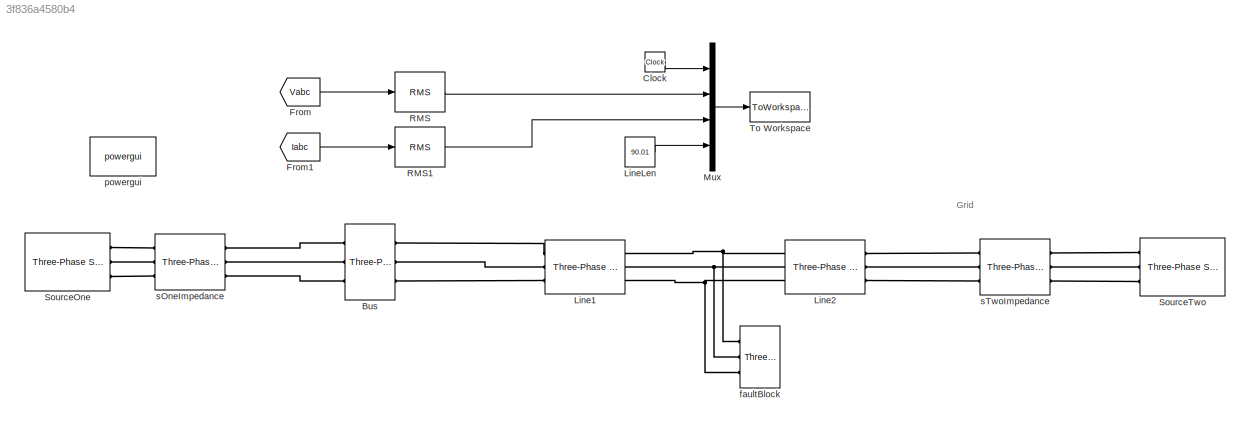
MODEL slx_3f836a4580b4
KIND model
CONFIG AbsTol = auto
CONFIG FixedStep = auto
CONFIG MaxStep = auto
CONFIG MinStep = auto
CONFIG RelTol = 1e-3
CONFIG SampleTimeConstraint = Unconstrained
CONFIG Solver = VariableStepAuto
CONFIG SolverMode = SingleTasking
CONFIG SolverName = VariableStepAuto
CONFIG StartTime = 0.0
CONFIG StopTime = 0.3
BLOCK [Reference] Bus  REF=powerlib/Measurements/Three-Phase
V-I Measurement
  Ports = [0, 0, 0, 0, 0, 3, 3]
  SourceBlock = powerlib/Measurements/Three-Phase\nV-I Measurement
  SourceType = Three-Phase VI Measurement
BLOCK [Clock] Clock
BLOCK [From] From
  GotoTag = Vabc
  TagVisibility = global
BLOCK [From] From1
  GotoTag = Iabc
  TagVisibility = global
BLOCK [Reference] Line1  REF=powerlib/Elements/Three-Phase
PI Section Line
  AttributesFormatString = \n
  Ports = [0, 0, 0, 0, 0, 3, 3]
  SourceBlock = powerlib/Elements/Three-Phase\nPI Section Line
  SourceType = Three-Phase PI Section Line
BLOCK [Reference] Line2  REF=powerlib/Elements/Three-Phase
PI Section Line
  AttributesFormatString = \n
  Ports = [0, 0, 0, 0, 0, 3, 3]
  SourceBlock = powerlib/Elements/Three-Phase\nPI Section Line
  SourceType = Three-Phase PI Section Line
BLOCK [Constant] LineLen
  Value = 90.01
BLOCK [Mux] Mux
  DisplayOption = bar
  Ports = [4, 1]
BLOCK [Reference] RMS  REF=powerlib_meascontrol/Measurements/RMS
  Ports = [1, 1]
  SourceBlock = powerlib_meascontrol/Measurements/RMS
  SourceType = RMS
BLOCK [Reference] RMS1  REF=powerlib_meascontrol/Measurements/RMS
  Ports = [1, 1]
  SourceBlock = powerlib_meascontrol/Measurements/RMS
  SourceType = RMS
BLOCK [Reference] SourceOne  REF=powerlib/Electrical
Sources/Three-Phase Source
  Ports = [0, 0, 0, 0, 0, 0, 3]
  SourceBlock = powerlib/Electrical\nSources/Three-Phase Source
  SourceType = Three-Phase Source
BLOCK [Reference] SourceTwo  REF=powerlib/Electrical
Sources/Three-Phase Source
  Ports = [0, 0, 0, 0, 0, 0, 3]
  SourceBlock = powerlib/Electrical\nSources/Three-Phase Source
  SourceType = Three-Phase Source
BLOCK [ToWorkspace] To Workspace
  FixptAsFi = on
  MaxDataPoints = inf
  Ports = [1]
  SampleTime = -1
  VariableName = data
BLOCK [Reference] faultBlock  REF=powerlib/Elements/Three-Phase Fault
  Ports = [0, 0, 0, 0, 0, 3]
  SourceBlock = powerlib/Elements/Three-Phase Fault
  SourceType = Three-Phase Fault
BLOCK [Reference] powergui  REF=powerlib/powergui
  Ports = []
  Priority = 1
  SourceBlock = powerlib/powergui
  SourceType = PSB option menu block
BLOCK [Reference] sOneImpedance  REF=powerlib/Elements/Three-Phase
Series RLC Branch
  AttributesFormatString = \n
  Ports = [0, 0, 0, 0, 0, 3, 3]
  SourceBlock = powerlib/Elements/Three-Phase\nSeries RLC Branch
  SourceType = Three-Phase Series RLC Branch
BLOCK [Reference] sTwoImpedance  REF=powerlib/Elements/Three-Phase
Series RLC Branch
  AttributesFormatString = \n
  Ports = [0, 0, 0, 0, 0, 3, 3]
  SourceBlock = powerlib/Elements/Three-Phase\nSeries RLC Branch
  SourceType = Three-Phase Series RLC Branch
ANNOTATION (root): Grid
LINE Clock:1 -> Mux:1
LINE From1:1 -> RMS1:1
LINE From:1 -> RMS:1
LINE LineLen:1 -> Mux:4
LINE Mux:1 -> To Workspace:1
LINE RMS1:1 -> Mux:3
LINE RMS:1 -> Mux:2
PLINE Bus:LConn1 -- sOneImpedance:RConn1
PLINE Bus:LConn2 -- sOneImpedance:RConn2
PLINE Bus:LConn3 -- sOneImpedance:RConn3
PLINE Bus:RConn1 -- Line1:LConn1
PLINE Bus:RConn2 -- Line1:LConn2
PLINE Bus:RConn3 -- Line1:LConn3
PNET net1: Line1:RConn1 -- Line2:LConn1 -- faultBlock:LConn1
PNET net2: Line1:RConn2 -- Line2:LConn2 -- faultBlock:LConn2
PNET net3: Line1:RConn3 -- Line2:LConn3 -- faultBlock:LConn3
PLINE Line2:RConn1 -- sTwoImpedance:RConn1
PLINE Line2:RConn2 -- sTwoImpedance:RConn2
PLINE Line2:RConn3 -- sTwoImpedance:RConn3
PLINE SourceOne:RConn1 -- sOneImpedance:LConn1
PLINE SourceOne:RConn2 -- sOneImpedance:LConn2
PLINE SourceOne:RConn3 -- sOneImpedance:LConn3
PLINE SourceTwo:RConn1 -- sTwoImpedance:LConn1
PLINE SourceTwo:RConn2 -- sTwoImpedance:LConn2
PLINE SourceTwo:RConn3 -- sTwoImpedance:LConn3
note: PNET lines group multi-terminal physical nets as a canonical sorted terminal list (undirected conserving connections); 2-terminal nets keep the pairwise PLINE form
